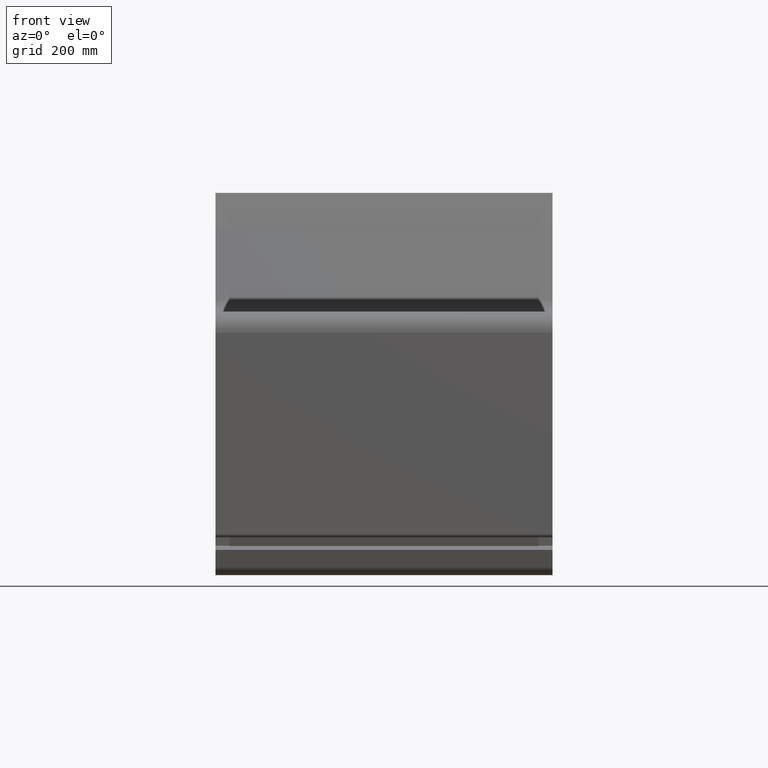
[diagram: clean part render]
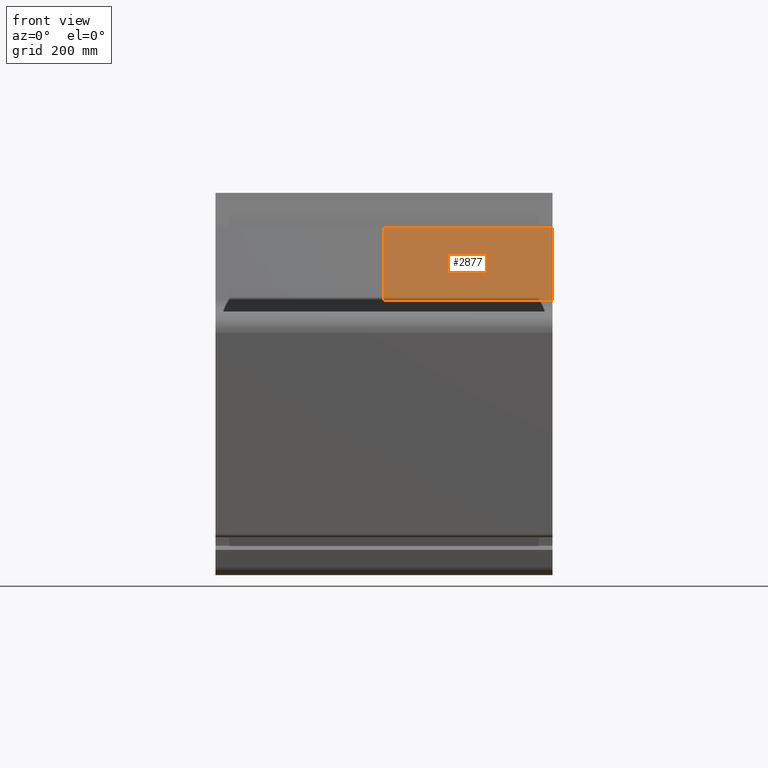
[diagram: same view with one face highlighted and labeled with its STEP entity id]
A machine part, front view. The second image highlights one B-rep face of the part: STEP entity #2877.
In plain terms, the highlighted planar face has unit normal (0, -0.8824, 0.4704).
Its self-contained STEP definition (entity closure, byte-faithful):
#2819=CARTESIAN_POINT('',(800.0,-167.88451179706968,583.97967926648357));
#2820=VERTEX_POINT('',#2819);
#2828=CARTESIAN_POINT('',(400.0,-167.88451179706968,583.97967926648357));
#2829=VERTEX_POINT('',#2828);
#2830=CARTESIAN_POINT('',(400.0,-167.88451179706968,583.97967926648357));
#2831=DIRECTION('',(1.0,0.0,0.0));
#2832=VECTOR('',#2831,400.0);
#2833=LINE('',#2830,#2832);
#2834=EDGE_CURVE('',#2829,#2820,#2833,.T.);
#2847=CARTESIAN_POINT('',(400.0,-167.88451179706968,583.97967926648357));
#2848=DIRECTION('',(0.0,-0.882449888116683,0.470406414670181));
#2849=DIRECTION('',(0.0,-0.470406414670181,-0.882449888116683));
#2850=AXIS2_PLACEMENT_3D('',#2847,#2848,#2849);
#2851=PLANE('',#2850);
#2852=CARTESIAN_POINT('',(800.0,-75.499999999999829,757.28663163063993));
#2853=VERTEX_POINT('',#2852);
#2854=CARTESIAN_POINT('',(800.0,-167.88451179706965,583.97967926648357));
#2855=DIRECTION('',(0.0,0.470406414670181,0.882449888116683));
#2856=VECTOR('',#2855,196.39296768910768);
#2857=LINE('',#2854,#2856);
#2858=EDGE_CURVE('',#2820,#2853,#2857,.T.);
#2859=ORIENTED_EDGE('',*,*,#2858,.T.);
#2860=CARTESIAN_POINT('',(400.0,-75.499999999999829,757.28663163063993));
#2861=VERTEX_POINT('',#2860);
#2862=CARTESIAN_POINT('',(400.0,-75.499999999999829,757.28663163063993));
#2863=DIRECTION('',(1.0,0.0,0.0));
#2864=VECTOR('',#2863,400.0);
#2865=LINE('',#2862,#2864);
#2866=EDGE_CURVE('',#2861,#2853,#2865,.T.);
#2867=ORIENTED_EDGE('',*,*,#2866,.F.);
#2868=CARTESIAN_POINT('',(400.0,-75.499999999999829,757.28663163063993));
#2869=DIRECTION('',(0.0,-0.470406414670181,-0.882449888116683));
#2870=VECTOR('',#2869,196.39296768910768);
#2871=LINE('',#2868,#2870);
#2872=EDGE_CURVE('',#2861,#2829,#2871,.T.);
#2873=ORIENTED_EDGE('',*,*,#2872,.T.);
#2874=ORIENTED_EDGE('',*,*,#2834,.T.);
#2875=EDGE_LOOP('',(#2859,#2867,#2873,#2874));
#2876=FACE_OUTER_BOUND('',#2875,.T.);
#2877=ADVANCED_FACE('',(#2876),#2851,.T.);